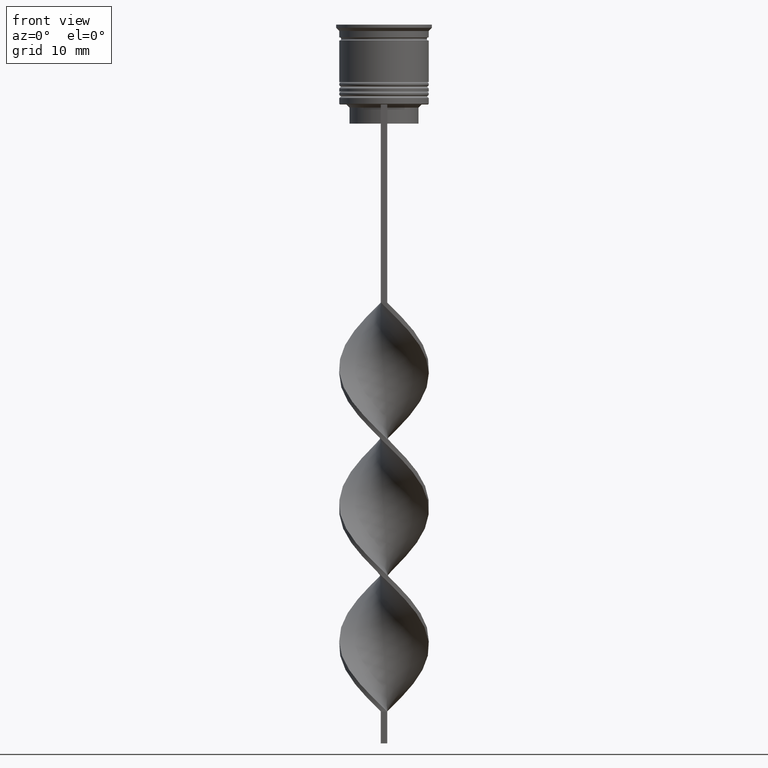
[diagram: clean part render]
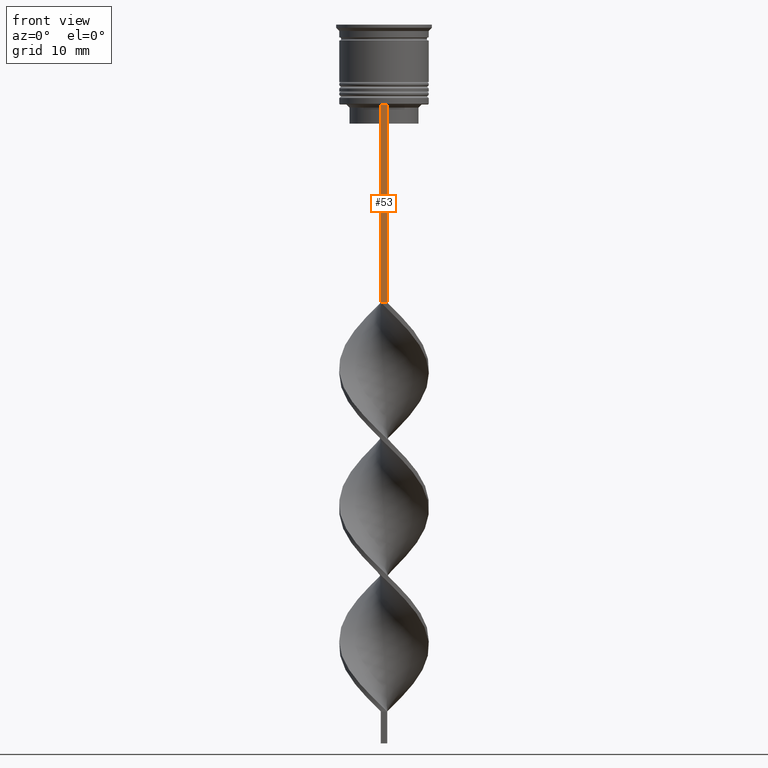
[diagram: same view with one face highlighted and labeled with its STEP entity id]
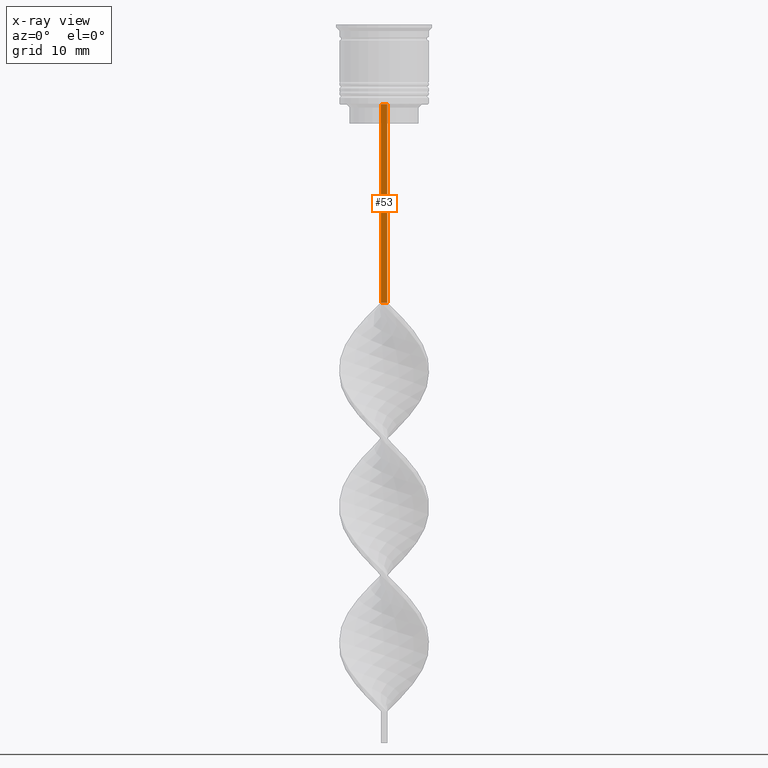
[diagram: x-ray of the same camera — body ghosted, the highlighted face saturated]
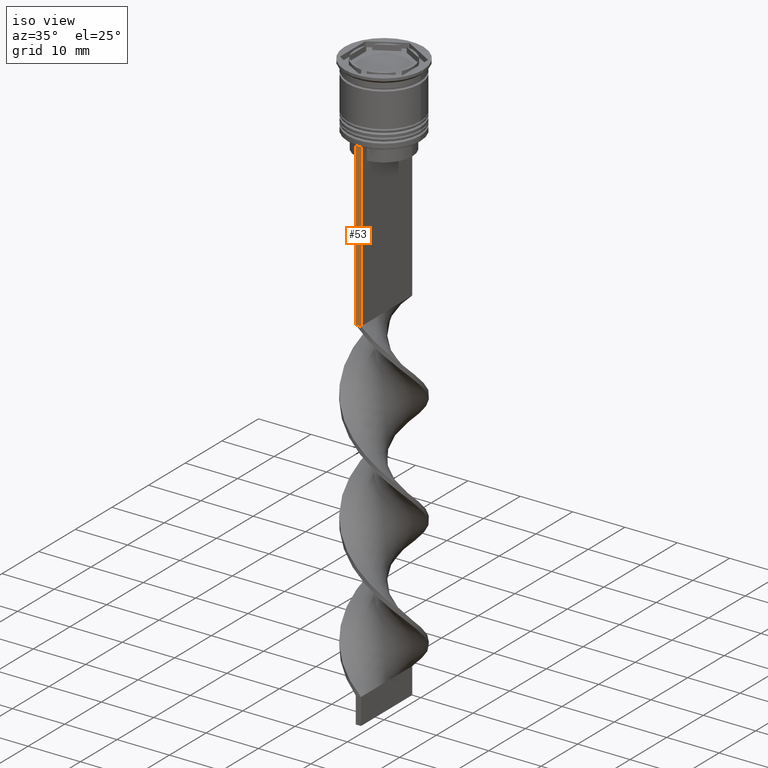
[diagram: same view with one face highlighted and labeled with its STEP entity id]
A machine part, front view. The second image highlights one B-rep face of the part: STEP entity #53.
The next image is the same camera in x-ray: the body ghosted, the highlighted face saturated — about 0% of this face is hidden behind the body in this view.
A second angle (iso view) of the same face is appended — the face is thin or edge-on in the first view.
In plain terms, the highlighted planar face has unit normal (0, -1, -0).
Its self-contained STEP definition (entity closure, byte-faithful):
#53 = ADVANCED_FACE ( 'NONE', ( #1088 ), #810, .T. ) ;
#149 = VERTEX_POINT ( 'NONE', #1464 ) ;
#221 = CARTESIAN_POINT ( 'NONE',  ( 0.5000000000000000000, -6.999999999999997335, -43.50000000000000000 ) ) ;
#375 = ORIENTED_EDGE ( 'NONE', *, *, #3109, .T. ) ;
#388 = VECTOR ( 'NONE', #1651, 1000.000000000000000 ) ;
#475 = LINE ( 'NONE', #798, #2724 ) ;
#638 = ORIENTED_EDGE ( 'NONE', *, *, #3122, .F. ) ;
#787 = AXIS2_PLACEMENT_3D ( 'NONE', #1050, #2168, #3039 ) ;
#798 = CARTESIAN_POINT ( 'NONE',  ( 0.5000000000000000000, -6.999999999999997335, 1.535668847618198329 ) ) ;
#810 = PLANE ( 'NONE',  #787 ) ;
#1050 = CARTESIAN_POINT ( 'NONE',  ( 0.5000000000000000000, -6.999999999999997335, 1.535668847618198329 ) ) ;
#1088 = FACE_OUTER_BOUND ( 'NONE', #2938, .T. ) ;
#1170 = DIRECTION ( 'NONE',  ( 1.000000000000000000, 0.000000000000000000, 0.000000000000000000 ) ) ;
#1215 = VECTOR ( 'NONE', #1170, 1000.000000000000000 ) ;
#1286 = EDGE_CURVE ( 'NONE', #2286, #1289, #475, .T. ) ;
#1289 = VERTEX_POINT ( 'NONE', #221 ) ;
#1369 = CARTESIAN_POINT ( 'NONE',  ( 0.5000000000000000000, -6.999999999999997335, -43.50000000000000000 ) ) ;
#1464 = CARTESIAN_POINT ( 'NONE',  ( -0.5000000000000000000, -6.999999999999997335, -12.50000000000000000 ) ) ;
#1562 = CARTESIAN_POINT ( 'NONE',  ( -0.5000000000000000000, -6.999999999999997335, -43.50000000000000000 ) ) ;
#1651 = DIRECTION ( 'NONE',  ( 0.000000000000000000, 0.000000000000000000, -1.000000000000000000 ) ) ;
#1683 = CARTESIAN_POINT ( 'NONE',  ( 0.5000000000000000000, -6.999999999999997335, -12.50000000000000000 ) ) ;
#1862 = LINE ( 'NONE', #3321, #388 ) ;
#2102 = VERTEX_POINT ( 'NONE', #1562 ) ;
#2168 = DIRECTION ( 'NONE',  ( 0.000000000000000000, -1.000000000000000000, -0.000000000000000000 ) ) ;
#2279 = LINE ( 'NONE', #1683, #1215 ) ;
#2286 = VERTEX_POINT ( 'NONE', #2750 ) ;
#2478 = DIRECTION ( 'NONE',  ( -1.000000000000000000, 0.000000000000000000, 0.000000000000000000 ) ) ;
#2505 = DIRECTION ( 'NONE',  ( 0.000000000000000000, 0.000000000000000000, -1.000000000000000000 ) ) ;
#2724 = VECTOR ( 'NONE', #2505, 1000.000000000000000 ) ;
#2750 = CARTESIAN_POINT ( 'NONE',  ( 0.5000000000000000000, -6.999999999999997335, -12.50000000000000000 ) ) ;
#2752 = LINE ( 'NONE', #1369, #3132 ) ;
#2938 = EDGE_LOOP ( 'NONE', ( #2992, #375, #638, #3471 ) ) ;
#2992 = ORIENTED_EDGE ( 'NONE', *, *, #3271, .F. ) ;
#3039 = DIRECTION ( 'NONE',  ( 0.000000000000000000, 0.000000000000000000, -1.000000000000000000 ) ) ;
#3109 = EDGE_CURVE ( 'NONE', #149, #2102, #1862, .T. ) ;
#3122 = EDGE_CURVE ( 'NONE', #1289, #2102, #2752, .T. ) ;
#3132 = VECTOR ( 'NONE', #2478, 1000.000000000000000 ) ;
#3271 = EDGE_CURVE ( 'NONE', #149, #2286, #2279, .T. ) ;
#3321 = CARTESIAN_POINT ( 'NONE',  ( -0.5000000000000000000, -6.999999999999997335, 1.535668847618198329 ) ) ;
#3471 = ORIENTED_EDGE ( 'NONE', *, *, #1286, .F. ) ;